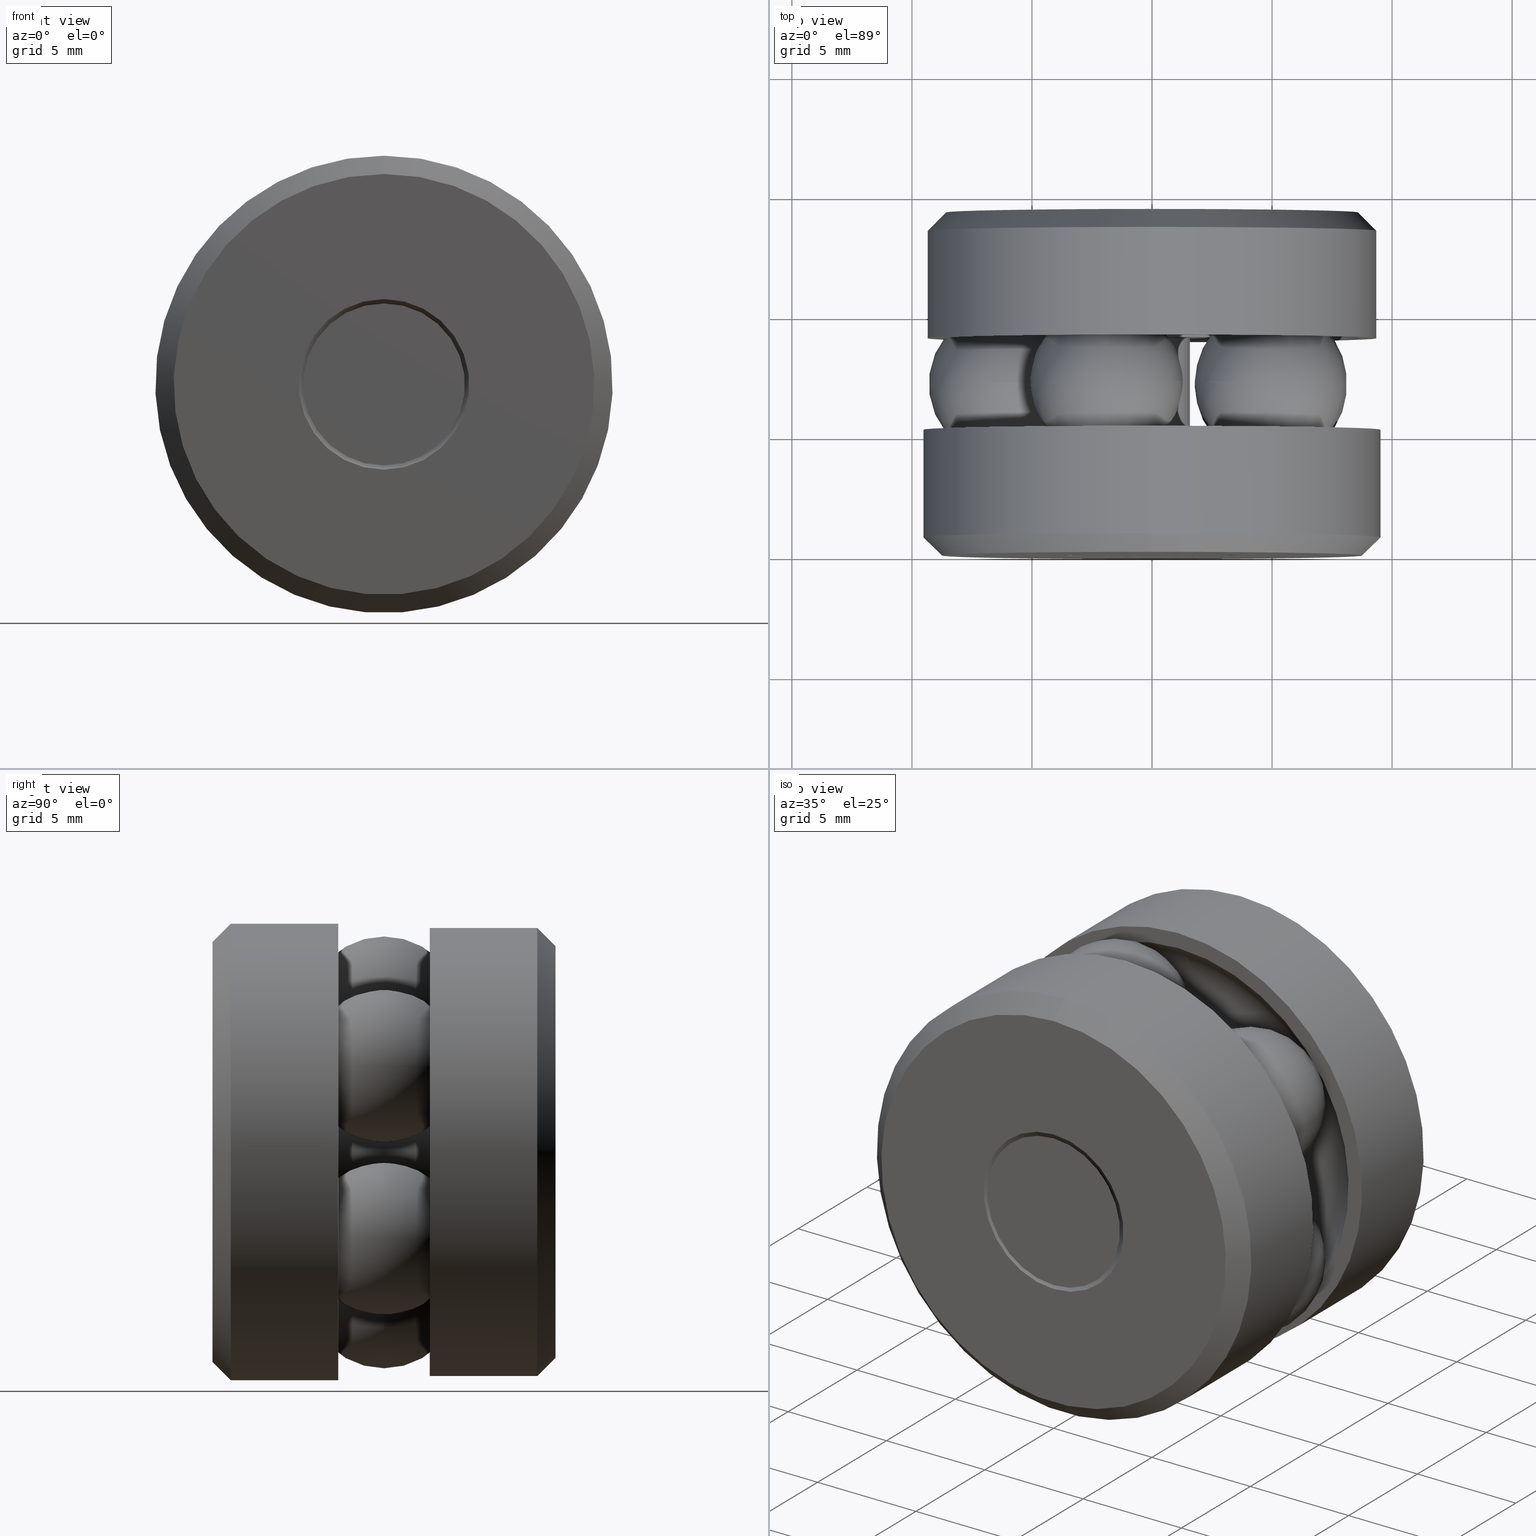
[diagram: canonical four-view strip — front | top / right | iso, engineering-drawing reading convention]
A machine part, canonical four-view strip (front | top / right | iso — engineering-drawing reading convention). The complete STEP part file that produces these views, byte-faithful:
ISO-10303-21;
HEADER;
FILE_DESCRIPTION (( 'STEP AP203' ),
    '1' );
FILE_NAME ('T-114RG_T-114RG-0012.step',
    '2016-02-04T15:34:09',
    ( '' ),
    ( '' ),
    'SwSTEP 2.0',
    'SolidWorks 2016',
    '' );
FILE_SCHEMA (( 'CONFIG_CONTROL_DESIGN' ));
ENDSEC;

DATA;
#1 = MANIFOLD_SOLID_BREP ( 'Revolve2[2]', #357 ) ;
#2 = ORIENTED_EDGE ( 'NONE', *, *, #124, .F. ) ;
#3 = DIRECTION ( 'NONE',  ( 0.9510565162951500900, 0.0000000000000000000, -0.3090169943749582800 ) ) ;
#4 = APPROVAL_DATE_TIME ( #121, #238 ) ;
#5 = FACE_BOUND ( 'NONE', #170, .T. ) ;
#6 =( LENGTH_UNIT ( ) NAMED_UNIT ( * ) SI_UNIT ( $, .METRE. ) );
#7 = EDGE_LOOP ( 'NONE', ( #351 ) ) ;
#8 = DIRECTION ( 'NONE',  ( 0.0000000000000000000, -1.000000000000000000, 0.0000000000000000000 ) ) ;
#9 = AXIS2_PLACEMENT_3D ( 'NONE', #356, #123, #410 ) ;
#10 = DIRECTION ( 'NONE',  ( 0.0000000000000000000, 0.0000000000000000000, 1.000000000000000000 ) ) ;
#11 = VERTEX_POINT ( 'NONE', #364 ) ;
#12 = APPLICATION_CONTEXT ( 'configuration controlled 3d designs of mechanical parts and assemblies' ) ;
#13 = SPHERICAL_SURFACE ( 'NONE', #169, 0.1250000000000000300 ) ;
#14 = AXIS2_PLACEMENT_3D ( 'NONE', #277, #71, #158 ) ;
#15 = DIRECTION ( 'NONE',  ( -0.0000000000000000000, 1.000000000000000000, -0.0000000000000000000 ) ) ;
#16 = EDGE_LOOP ( 'NONE', ( #156 ) ) ;
#17 = CARTESIAN_POINT ( 'NONE',  ( 0.0000000000000000000, 0.4901164321881347200, 0.06750000000000008800 ) ) ;
#18 = DIRECTION ( 'NONE',  ( 0.0000000000000000000, -1.000000000000000000, 0.0000000000000000000 ) ) ;
#19 = APPROVAL_PERSON_ORGANIZATION ( #132, #238, #104 ) ;
#20 = CIRCLE ( 'NONE', #427, 0.06750000000000003200 ) ;
#21 = EDGE_LOOP ( 'NONE', ( #90 ) ) ;
#22 = APPROVAL_ROLE ( '' ) ;
#23 = EDGE_CURVE ( 'NONE', #153, #153, #143, .T. ) ;
#24 = DIRECTION ( 'NONE',  ( 0.0000000000000000000, 0.0000000000000000000, 1.000000000000000000 ) ) ;
#25 = VERTEX_POINT ( 'NONE', #130 ) ;
#26 = DATE_AND_TIME ( #142, #251 ) ;
#27 = FACE_OUTER_BOUND ( 'NONE', #275, .T. ) ;
#28 = CARTESIAN_POINT ( 'NONE',  ( 0.0000000000000000000, 0.5624999999999998900, 0.0000000000000000000 ) ) ;
#29 = ORIENTED_EDGE ( 'NONE', *, *, #323, .F. ) ;
#30 = ORIENTED_EDGE ( 'NONE', *, *, #294, .F. ) ;
#31 = CARTESIAN_POINT ( 'NONE',  ( 0.0000000000000000000, 0.2062500000000001600, 0.1409999999999998500 ) ) ;
#32 = ADVANCED_FACE ( 'NONE', ( #253, #27 ), #129, .F. ) ;
#33 = DIRECTION ( 'NONE',  ( -0.0000000000000000000, 1.000000000000000000, -0.0000000000000000000 ) ) ;
#34 = COORDINATED_UNIVERSAL_TIME_OFFSET ( 5, 0, .BEHIND. ) ;
#35 = CONICAL_SURFACE ( 'NONE', #91, 0.06750000000000008800, 0.7853981633974438400 ) ;
#36 = ADVANCED_FACE ( 'NONE', ( ), #13, .T. ) ;
#37 = DIRECTION ( 'NONE',  ( -0.0000000000000000000, 1.000000000000000000, -0.0000000000000000000 ) ) ;
#38 = ORIENTED_EDGE ( 'NONE', *, *, #109, .F. ) ;
#39 = DIMENSIONAL_EXPONENTS ( 1.000000000000000000, 0.0000000000000000000, 0.0000000000000000000, 0.0000000000000000000, 0.0000000000000000000, 0.0000000000000000000, 0.0000000000000000000 ) ;
#40 = CARTESIAN_POINT ( 'NONE',  ( -0.1328124999999993300, 0.0000000000000000000, 0.0000000000000000000 ) ) ;
#41 = CARTESIAN_POINT ( 'NONE',  ( 0.0000000000000000000, 0.5324999999999996400, 0.0000000000000000000 ) ) ;
#42 = VERTEX_POINT ( 'NONE', #445 ) ;
#43 = PERSON_AND_ORGANIZATION ( #285, #62 ) ;
#44 = CC_DESIGN_PERSON_AND_ORGANIZATION_ASSIGNMENT ( #493, #470, ( #115 ) ) ;
#45 = ORIENTED_EDGE ( 'NONE', *, *, #124, .T. ) ;
#46 = DIRECTION ( 'NONE',  ( 0.0000000000000000000, 0.0000000000000000000, -1.000000000000000000 ) ) ;
#47 = ORIENTED_EDGE ( 'NONE', *, *, #204, .F. ) ;
#48 = DIRECTION ( 'NONE',  ( 0.5877852522924802400, -0.0000000000000000000, 0.8090169943749422300 ) ) ;
#49 = AXIS2_PLACEMENT_3D ( 'NONE', #176, #316, #214 ) ;
#50 = LOCAL_TIME ( 10, 34, 9.000000000000000000, #161 ) ;
#51 = CYLINDRICAL_SURFACE ( 'NONE', #120, 0.3750000000000000600 ) ;
#52 = DIRECTION ( 'NONE',  ( 0.0000000000000000000, 0.0000000000000000000, 1.000000000000000000 ) ) ;
#53 = CARTESIAN_POINT ( 'NONE',  ( 0.0000000000000000000, 0.03000000000000031100, 0.0000000000000000000 ) ) ;
#54 = ORIENTED_EDGE ( 'NONE', *, *, #177, .T. ) ;
#55 = AXIS2_PLACEMENT_3D ( 'NONE', #492, #212, #271 ) ;
#56 = CYLINDRICAL_SURFACE ( 'NONE', #337, 0.3679999999999999900 ) ;
#57 = EDGE_CURVE ( 'NONE', #42, #42, #464, .T. ) ;
#58 = DIRECTION ( 'NONE',  ( 0.0000000000000000000, 0.0000000000000000000, 1.000000000000000000 ) ) ;
#59 = EDGE_LOOP ( 'NONE', ( #487 ) ) ;
#60 = CARTESIAN_POINT ( 'NONE',  ( -0.1398835678118648100, 0.5625000000000000000, 0.0000000000000000000 ) ) ;
#61 = CARTESIAN_POINT ( 'NONE',  ( 0.1949730956443631000, 0.2812500000000000600, 0.1416562458024849000 ) ) ;
#62 = ORGANIZATION ( 'UNSPECIFIED', 'UNSPECIFIED', '' ) ;
#63 = CARTESIAN_POINT ( 'NONE',  ( 0.0000000000000000000, 0.2062500000000001600, 0.06750000000000000400 ) ) ;
#64 = FACE_OUTER_BOUND ( 'NONE', #280, .T. ) ;
#65 = AXIS2_PLACEMENT_3D ( 'NONE', #453, #37, #146 ) ;
#66 = DIRECTION ( 'NONE',  ( 0.0000000000000000000, 0.0000000000000000000, 1.000000000000000000 ) ) ;
#67 = EDGE_LOOP ( 'NONE', ( #150 ) ) ;
#68 = CARTESIAN_POINT ( 'NONE',  ( 0.0000000000000000000, 0.5625000000000001100, 0.1328124999999994200 ) ) ;
#69 = CARTESIAN_POINT ( 'NONE',  ( 0.0000000000000000000, 0.5625000000000001100, 0.0000000000000000000 ) ) ;
#70 = FACE_BOUND ( 'NONE', #290, .T. ) ;
#71 = DIRECTION ( 'NONE',  ( -0.0000000000000000000, 1.000000000000000000, -0.0000000000000000000 ) ) ;
#72 = PRODUCT_DEFINITION ( 'UNKNOWN', '', #208, #313 ) ;
#73 = CLOSED_SHELL ( 'NONE', ( #36 ) ) ;
#74 = ORIENTED_EDGE ( 'NONE', *, *, #323, .T. ) ;
#75 = DIRECTION ( 'NONE',  ( 0.0000000000000000000, 0.0000000000000000000, 1.000000000000000000 ) ) ;
#76 = AXIS2_PLACEMENT_3D ( 'NONE', #503, #213, #192 ) ;
#77 = PRODUCT_DEFINITION_SHAPE ( 'NONE', 'NONE',  #72 ) ;
#78 = ADVANCED_FACE ( 'NONE', ( ), #239, .T. ) ;
#79 = CARTESIAN_POINT ( 'NONE',  ( 0.0000000000000000000, 0.5625000000000001100, 0.0000000000000000000 ) ) ;
#80 = SPHERICAL_SURFACE ( 'NONE', #173, 0.1250000000000000300 ) ;
#81 = ADVANCED_FACE ( 'NONE', ( ), #447, .T. ) ;
#82 = ORIENTED_EDGE ( 'NONE', *, *, #403, .T. ) ;
#83 = CARTESIAN_POINT ( 'NONE',  ( -0.1398835678118647000, -2.068422666186269000E-017, 0.0000000000000000000 ) ) ;
#84 = AXIS2_PLACEMENT_3D ( 'NONE', #40, #388, #505 ) ;
#85 = FACE_BOUND ( 'NONE', #247, .T. ) ;
#86 = CLOSED_SHELL ( 'NONE', ( #81 ) ) ;
#87 = EDGE_CURVE ( 'NONE', #250, #250, #354, .T. ) ;
#88 =( NAMED_UNIT ( * ) SI_UNIT ( $, .STERADIAN. ) SOLID_ANGLE_UNIT ( ) );
#89 = FACE_OUTER_BOUND ( 'NONE', #21, .T. ) ;
#90 = ORIENTED_EDGE ( 'NONE', *, *, #57, .F. ) ;
#91 = AXIS2_PLACEMENT_3D ( 'NONE', #372, #484, #531 ) ;
#92 = CARTESIAN_POINT ( 'NONE',  ( 0.0000000000000000000, -4.033012303457140400E-017, 0.3450000000000000300 ) ) ;
#93 = FACE_OUTER_BOUND ( 'NONE', #67, .T. ) ;
#94 = CARTESIAN_POINT ( 'NONE',  ( 0.0000000000000000000, 0.2062500000000000400, 0.3750000000000000600 ) ) ;
#95 = EDGE_LOOP ( 'NONE', ( #315 ) ) ;
#96 = APPROVAL ( #295, 'UNSPECIFIED' ) ;
#97 = VERTEX_POINT ( 'NONE', #261 ) ;
#98 = CIRCLE ( 'NONE', #14, 0.1409999999999998500 ) ;
#99 = MANIFOLD_SOLID_BREP ( 'Revolve2[3]', #517 ) ;
#100 = SECURITY_CLASSIFICATION_LEVEL ( 'unclassified' ) ;
#101 = CARTESIAN_POINT ( 'NONE',  ( 0.0000000000000000000, 0.0000000000000000000, 0.0000000000000000000 ) ) ;
#102 = DATE_TIME_ROLE ( 'classification_date' ) ;
#103 = COORDINATED_UNIVERSAL_TIME_OFFSET ( 5, 0, .BEHIND. ) ;
#104 = APPROVAL_ROLE ( '' ) ;
#105 = CYLINDRICAL_SURFACE ( 'NONE', #507, 0.06750000000000000400 ) ;
#106 = AXIS2_PLACEMENT_3D ( 'NONE', #137, #8, #392 ) ;
#107 = EDGE_LOOP ( 'NONE', ( #165 ) ) ;
#108 = DIRECTION ( 'NONE',  ( 0.0000000000000000000, 0.0000000000000000000, 1.000000000000000000 ) ) ;
#109 = EDGE_CURVE ( 'NONE', #140, #140, #342, .T. ) ;
#110 = DIRECTION ( 'NONE',  ( 0.0000000000000000000, -1.000000000000000000, 0.0000000000000000000 ) ) ;
#111 = VERTEX_POINT ( 'NONE', #187 ) ;
#112 = FACE_OUTER_BOUND ( 'NONE', #450, .T. ) ;
#113 = CARTESIAN_POINT ( 'NONE',  ( -0.1409999999999999000, 0.3562499999999999000, 0.0000000000000000000 ) ) ;
#114 = ADVANCED_FACE ( 'NONE', ( #226, #436 ), #526, .T. ) ;
#115 = PRODUCT ( 'T-114RG_T-114RG-0012', 'T-114RG_T-114RG-0012', '', ( #407 ) ) ;
#116 = EDGE_LOOP ( 'NONE', ( #537 ) ) ;
#117 = DIRECTION ( 'NONE',  ( -0.0000000000000000000, 1.000000000000000000, -0.0000000000000000000 ) ) ;
#118 = ADVANCED_FACE ( 'NONE', ( #542, #112 ), #422, .T. ) ;
#119 = DIRECTION ( 'NONE',  ( 0.0000000000000000000, -0.0000000000000000000, -1.000000000000000000 ) ) ;
#120 = AXIS2_PLACEMENT_3D ( 'NONE', #455, #310, #199 ) ;
#121 = DATE_AND_TIME ( #231, #347 ) ;
#122 = CIRCLE ( 'NONE', #376, 0.06750000000000008800 ) ;
#123 = DIRECTION ( 'NONE',  ( 0.0000000000000000000, 0.0000000000000000000, 1.000000000000000000 ) ) ;
#124 = EDGE_CURVE ( 'NONE', #25, #25, #329, .T. ) ;
#125 = CLOSED_SHELL ( 'NONE', ( #78 ) ) ;
#126 = CC_DESIGN_APPROVAL ( #96, ( #72 ) ) ;
#127 = VERTEX_POINT ( 'NONE', #301 ) ;
#128 = DIRECTION ( 'NONE',  ( -0.0000000000000000000, 1.000000000000000000, -0.0000000000000000000 ) ) ;
#129 = CYLINDRICAL_SURFACE ( 'NONE', #223, 0.06750000000000006000 ) ;
#130 = CARTESIAN_POINT ( 'NONE',  ( 0.0000000000000000000, 0.07238356781186547400, 0.06750000000000000400 ) ) ;
#131 = EDGE_LOOP ( 'NONE', ( #417 ) ) ;
#132 = PERSON_AND_ORGANIZATION ( #285, #62 ) ;
#133 = DIRECTION ( 'NONE',  ( 0.0000000000000000000, 0.0000000000000000000, -1.000000000000000000 ) ) ;
#134 = FACE_BOUND ( 'NONE', #116, .T. ) ;
#135 = DIRECTION ( 'NONE',  ( 1.000000000000000000, 0.0000000000000000000, 0.0000000000000000000 ) ) ;
#136 = EDGE_LOOP ( 'NONE', ( #227 ) ) ;
#137 = CARTESIAN_POINT ( 'NONE',  ( 0.0000000000000000000, 0.07031250000000006900, 0.0000000000000000000 ) ) ;
#138 = AXIS2_PLACEMENT_3D ( 'NONE', #318, #425, #467 ) ;
#139 = DIRECTION ( 'NONE',  ( 0.0000000000000000000, 0.0000000000000000000, 1.000000000000000000 ) ) ;
#140 = VERTEX_POINT ( 'NONE', #224 ) ;
#141 = AXIS2_PLACEMENT_3D ( 'NONE', #541, #164, #335 ) ;
#142 = CALENDAR_DATE ( 2016, 4, 2 ) ;
#143 = CIRCLE ( 'NONE', #141, 0.3750000000000000600 ) ;
#144 = DIRECTION ( 'NONE',  ( -0.0000000000000000000, 1.000000000000000000, -0.0000000000000000000 ) ) ;
#145 = EDGE_LOOP ( 'NONE', ( #54 ) ) ;
#146 = DIRECTION ( 'NONE',  ( 0.0000000000000000000, 0.0000000000000000000, 1.000000000000000000 ) ) ;
#147 = PERSON_AND_ORGANIZATION ( #285, #62 ) ;
#148 = CIRCLE ( 'NONE', #65, 0.06250000000000008300 ) ;
#149 = DIRECTION ( 'NONE',  ( 0.0000000000000000000, 0.0000000000000000000, 1.000000000000000000 ) ) ;
#150 = ORIENTED_EDGE ( 'NONE', *, *, #511, .F. ) ;
#151 = EDGE_CURVE ( 'NONE', #462, #462, #211, .T. ) ;
#152 = CARTESIAN_POINT ( 'NONE',  ( -0.2409999999999999600, 0.2812500000000000600, 0.0000000000000000000 ) ) ;
#153 = VERTEX_POINT ( 'NONE', #94 ) ;
#154 = CC_DESIGN_PERSON_AND_ORGANIZATION_ASSIGNMENT ( #147, #346, ( #72 ) ) ;
#155 = CARTESIAN_POINT ( 'NONE',  ( 0.0000000000000000000, 0.5624999999999998900, 0.0000000000000000000 ) ) ;
#156 = ORIENTED_EDGE ( 'NONE', *, *, #87, .T. ) ;
#157 = DIRECTION ( 'NONE',  ( -0.0000000000000000000, 1.000000000000000000, -0.0000000000000000000 ) ) ;
#158 = DIRECTION ( 'NONE',  ( 0.0000000000000000000, 0.0000000000000000000, 1.000000000000000000 ) ) ;
#159 = ADVANCED_BREP_SHAPE_REPRESENTATION ( 'T-114RG_T-114RG-0012', ( #489, #1, #99, #195, #358, #452, #298, #397, #9 ), #443 ) ;
#160 = ADVANCED_FACE ( 'NONE', ( #366, #312 ), #387, .T. ) ;
#161 = COORDINATED_UNIVERSAL_TIME_OFFSET ( 5, 0, .BEHIND. ) ;
#162 = FACE_OUTER_BOUND ( 'NONE', #186, .T. ) ;
#163 = ADVANCED_FACE ( 'NONE', ( #196, #408 ), #287, .T. ) ;
#164 = DIRECTION ( 'NONE',  ( -0.0000000000000000000, 1.000000000000000000, -0.0000000000000000000 ) ) ;
#165 = ORIENTED_EDGE ( 'NONE', *, *, #539, .T. ) ;
#166 = AXIS2_PLACEMENT_3D ( 'NONE', #460, #128, #139 ) ;
#167 = CIRCLE ( 'NONE', #306, 0.3679999999999999900 ) ;
#168 = CARTESIAN_POINT ( 'NONE',  ( -0.1409999999999998500, 0.2062500000000001600, 0.0000000000000000000 ) ) ;
#169 = AXIS2_PLACEMENT_3D ( 'NONE', #175, #300, #429 ) ;
#170 = EDGE_LOOP ( 'NONE', ( #45 ) ) ;
#171 = DIRECTION ( 'NONE',  ( 0.0000000000000000000, -0.0000000000000000000, -1.000000000000000000 ) ) ;
#172 = FACE_OUTER_BOUND ( 'NONE', #95, .T. ) ;
#173 = AXIS2_PLACEMENT_3D ( 'NONE', #411, #48, #289 ) ;
#174 = EDGE_LOOP ( 'NONE', ( #241 ) ) ;
#175 = CARTESIAN_POINT ( 'NONE',  ( -0.07447309564436169200, 0.2812500000000000600, 0.2292046204271322400 ) ) ;
#176 = CARTESIAN_POINT ( 'NONE',  ( -0.3679999999999999900, 0.3562499999999999000, 0.0000000000000000000 ) ) ;
#177 = EDGE_CURVE ( 'NONE', #353, #353, #98, .T. ) ;
#178 = CARTESIAN_POINT ( 'NONE',  ( 0.0000000000000000000, -1.038330289153975800E-018, 0.0000000000000000000 ) ) ;
#179 = TOROIDAL_SURFACE ( 'NONE', #278, 0.2409999999999999600, 0.1250000000000000300 ) ;
#180 = DIRECTION ( 'NONE',  ( -0.0000000000000000000, 1.000000000000000000, -0.0000000000000000000 ) ) ;
#181 = ORIENTED_EDGE ( 'NONE', *, *, #87, .F. ) ;
#182 = CC_DESIGN_DATE_AND_TIME_ASSIGNMENT ( #245, #488, ( #72 ) ) ;
#183 = CARTESIAN_POINT ( 'NONE',  ( -0.3750000000000000600, 0.2062500000000001000, 0.0000000000000000000 ) ) ;
#184 = FACE_OUTER_BOUND ( 'NONE', #497, .T. ) ;
#185 = DIRECTION ( 'NONE',  ( 0.0000000000000000000, 0.0000000000000000000, 1.000000000000000000 ) ) ;
#186 = EDGE_LOOP ( 'NONE', ( #221 ) ) ;
#187 = CARTESIAN_POINT ( 'NONE',  ( 0.0000000000000000000, 0.5625000000000001100, 0.1398835678118648100 ) ) ;
#188 = CIRCLE ( 'NONE', #166, 0.3410000000000000800 ) ;
#189 = AXIS2_PLACEMENT_3D ( 'NONE', #60, #303, #520 ) ;
#190 = DIRECTION ( 'NONE',  ( -0.0000000000000000000, 1.000000000000000000, -0.0000000000000000000 ) ) ;
#191 = ORIENTED_EDGE ( 'NONE', *, *, #151, .T. ) ;
#192 = DIRECTION ( 'NONE',  ( 0.0000000000000000000, 0.0000000000000000000, 1.000000000000000000 ) ) ;
#193 = AXIS2_PLACEMENT_3D ( 'NONE', #53, #498, #311 ) ;
#194 = CARTESIAN_POINT ( 'NONE',  ( 0.0000000000000000000, 0.07031250000000006900, 0.0000000000000000000 ) ) ;
#195 = MANIFOLD_SOLID_BREP ( 'Revolve3', #125 ) ;
#196 = FACE_BOUND ( 'NONE', #7, .T. ) ;
#197 = ADVANCED_FACE ( 'NONE', ( #516, #184 ), #299, .F. ) ;
#198 = EDGE_LOOP ( 'NONE', ( #47 ) ) ;
#199 = DIRECTION ( 'NONE',  ( 0.0000000000000000000, 0.0000000000000000000, 1.000000000000000000 ) ) ;
#200 = ADVANCED_FACE ( 'NONE', ( #398, #89 ), #386, .T. ) ;
#201 = AXIS2_PLACEMENT_3D ( 'NONE', #339, #15, #444 ) ;
#202 = FACE_OUTER_BOUND ( 'NONE', #437, .T. ) ;
#203 = DIRECTION ( 'NONE',  ( -0.0000000000000000000, 1.000000000000000000, -0.0000000000000000000 ) ) ;
#204 = EDGE_CURVE ( 'NONE', #237, #237, #494, .T. ) ;
#205 = PLANE ( 'NONE',  #189 ) ;
#206 = ORIENTED_EDGE ( 'NONE', *, *, #151, .F. ) ;
#207 = DIRECTION ( 'NONE',  ( 0.0000000000000000000, 0.0000000000000000000, 1.000000000000000000 ) ) ;
#208 = PRODUCT_DEFINITION_FORMATION_WITH_SPECIFIED_SOURCE ( 'ANY', '', #115, .NOT_KNOWN. ) ;
#209 = APPLICATION_PROTOCOL_DEFINITION ( 'international standard', 'config_control_design', 1994, #12 ) ;
#210 = VERTEX_POINT ( 'NONE', #218 ) ;
#211 = CIRCLE ( 'NONE', #396, 0.06750000000000000400 ) ;
#212 = DIRECTION ( 'NONE',  ( -0.0000000000000000000, 1.000000000000000000, -0.0000000000000000000 ) ) ;
#213 = DIRECTION ( 'NONE',  ( -0.0000000000000000000, 1.000000000000000000, -0.0000000000000000000 ) ) ;
#214 = DIRECTION ( 'NONE',  ( 0.0000000000000000000, -0.0000000000000000000, -1.000000000000000000 ) ) ;
#215 = PERSON_AND_ORGANIZATION ( #285, #62 ) ;
#216 = DIRECTION ( 'NONE',  ( -0.0000000000000000000, 1.000000000000000000, -0.0000000000000000000 ) ) ;
#217 = CIRCLE ( 'NONE', #483, 0.1398835678118648100 ) ;
#218 = CARTESIAN_POINT ( 'NONE',  ( 0.0000000000000000000, 0.3562500000000000100, 0.3679999999999999900 ) ) ;
#219 = CARTESIAN_POINT ( 'NONE',  ( 0.0000000000000000000, -1.038330289153975800E-018, 0.0000000000000000000 ) ) ;
#220 = AXIS2_PLACEMENT_3D ( 'NONE', #269, #344, #538 ) ;
#221 = ORIENTED_EDGE ( 'NONE', *, *, #23, .T. ) ;
#222 = CARTESIAN_POINT ( 'NONE',  ( 0.0000000000000000000, 0.0000000000000000000, 0.0000000000000000000 ) ) ;
#223 = AXIS2_PLACEMENT_3D ( 'NONE', #379, #390, #440 ) ;
#224 = CARTESIAN_POINT ( 'NONE',  ( 0.0000000000000000000, -1.038330289153975800E-018, 0.1398835678118647000 ) ) ;
#225 = VERTEX_POINT ( 'NONE', #17 ) ;
#226 = FACE_OUTER_BOUND ( 'NONE', #521, .T. ) ;
#227 = ORIENTED_EDGE ( 'NONE', *, *, #539, .F. ) ;
#228 = DIRECTION ( 'NONE',  ( -0.0000000000000000000, 1.000000000000000000, 0.0000000000000000000 ) ) ;
#229 = EDGE_LOOP ( 'NONE', ( #504 ) ) ;
#230 = AXIS2_PLACEMENT_3D ( 'NONE', #183, #506, #185 ) ;
#231 = CALENDAR_DATE ( 2016, 4, 2 ) ;
#232 = FACE_OUTER_BOUND ( 'NONE', #302, .T. ) ;
#233 = PLANE ( 'NONE',  #349 ) ;
#234 = ORIENTED_EDGE ( 'NONE', *, *, #109, .T. ) ;
#235 = EDGE_CURVE ( 'NONE', #127, #127, #502, .T. ) ;
#236 = CARTESIAN_POINT ( 'NONE',  ( 0.0000000000000000000, -4.033012303457140400E-017, 0.0000000000000000000 ) ) ;
#237 = VERTEX_POINT ( 'NONE', #370 ) ;
#238 = APPROVAL ( #529, 'UNSPECIFIED' ) ;
#239 = SPHERICAL_SURFACE ( 'NONE', #281, 0.1250000000000000300 ) ;
#240 =( NAMED_UNIT ( * ) PLANE_ANGLE_UNIT ( ) SI_UNIT ( $, .RADIAN. ) );
#241 = ORIENTED_EDGE ( 'NONE', *, *, #204, .T. ) ;
#242 = EDGE_LOOP ( 'NONE', ( #181 ) ) ;
#243 = ADVANCED_FACE ( 'NONE', ( #172, #64 ), #51, .T. ) ;
#244 = ADVANCED_FACE ( 'NONE', ( #286, #481 ), #35, .F. ) ;
#245 = DATE_AND_TIME ( #360, #468 ) ;
#246 = FACE_OUTER_BOUND ( 'NONE', #145, .T. ) ;
#247 = EDGE_LOOP ( 'NONE', ( #324 ) ) ;
#248 = DIRECTION ( 'NONE',  ( 0.0000000000000000000, -1.000000000000000000, 0.0000000000000000000 ) ) ;
#249 = AXIS2_PLACEMENT_3D ( 'NONE', #527, #157, #449 ) ;
#250 = VERTEX_POINT ( 'NONE', #92 ) ;
#251 = LOCAL_TIME ( 10, 34, 9.000000000000000000, #365 ) ;
#252 = DIRECTION ( 'NONE',  ( 0.0000000000000000000, 0.0000000000000000000, -1.000000000000000000 ) ) ;
#253 = FACE_OUTER_BOUND ( 'NONE', #424, .T. ) ;
#254 = AXIS2_PLACEMENT_3D ( 'NONE', #236, #190, #10 ) ;
#255 = CARTESIAN_POINT ( 'NONE',  ( -0.07447309564436492600, 0.2812500000000000600, -0.2292046204271311600 ) ) ;
#256 = EDGE_LOOP ( 'NONE', ( #389 ) ) ;
#257 = UNCERTAINTY_MEASURE_WITH_UNIT (LENGTH_MEASURE( 1.000000000000000100E-005 ), #523, 'distance_accuracy_value', 'NONE');
#258 = DIRECTION ( 'NONE',  ( -0.8090169943749507800, 0.0000000000000000000, -0.5877852522924685900 ) ) ;
#259 = APPROVAL_DATE_TIME ( #373, #96 ) ;
#260 = FACE_BOUND ( 'NONE', #477, .T. ) ;
#261 = CARTESIAN_POINT ( 'NONE',  ( 0.0000000000000000000, 0.5324999999999996400, 0.3679999999999999900 ) ) ;
#262 = AXIS2_PLACEMENT_3D ( 'NONE', #101, #279, #359 ) ;
#263 = EDGE_LOOP ( 'NONE', ( #29 ) ) ;
#264 = DIRECTION ( 'NONE',  ( 0.0000000000000000000, 0.0000000000000000000, 1.000000000000000000 ) ) ;
#265 = PLANE ( 'NONE',  #84 ) ;
#266 = EDGE_CURVE ( 'NONE', #11, #11, #148, .T. ) ;
#267 = CIRCLE ( 'NONE', #394, 0.3380000000000001300 ) ;
#268 = CC_DESIGN_APPROVAL ( #238, ( #208 ) ) ;
#269 = CARTESIAN_POINT ( 'NONE',  ( 0.0000000000000000000, 0.3562500000000000100, 0.0000000000000000000 ) ) ;
#270 = ORIENTED_EDGE ( 'NONE', *, *, #432, .T. ) ;
#271 = DIRECTION ( 'NONE',  ( 0.0000000000000000000, 0.0000000000000000000, 1.000000000000000000 ) ) ;
#272 = APPROVAL_ROLE ( '' ) ;
#273 = APPROVAL_PERSON_ORGANIZATION ( #385, #96, #272 ) ;
#274 = FACE_OUTER_BOUND ( 'NONE', #263, .T. ) ;
#275 = EDGE_LOOP ( 'NONE', ( #466 ) ) ;
#276 = CARTESIAN_POINT ( 'NONE',  ( 0.0000000000000000000, 0.07238356781186547400, 0.0000000000000000000 ) ) ;
#277 = CARTESIAN_POINT ( 'NONE',  ( 0.0000000000000000000, 0.2062500000000001600, 0.0000000000000000000 ) ) ;
#278 = AXIS2_PLACEMENT_3D ( 'NONE', #473, #420, #426 ) ;
#279 = DIRECTION ( 'NONE',  ( -0.0000000000000000000, 1.000000000000000000, -0.0000000000000000000 ) ) ;
#280 = EDGE_LOOP ( 'NONE', ( #336 ) ) ;
#281 = AXIS2_PLACEMENT_3D ( 'NONE', #152, #46, #135 ) ;
#282 = CARTESIAN_POINT ( 'NONE',  ( 0.0000000000000000000, 0.3562499999999999000, 0.1409999999999998800 ) ) ;
#283 = ADVANCED_FACE ( 'NONE', ( ), #80, .T. ) ;
#284 = CARTESIAN_POINT ( 'NONE',  ( 0.0000000000000000000, 0.0000000000000000000, 0.1328124999999993300 ) ) ;
#285 = PERSON ( 'UNSPECIFIED', 'UNSPECIFIED', 'UNSPECIFIED', ('UNSPECIFIED'), ('UNSPECIFIED'), ('UNSPECIFIED') ) ;
#286 = FACE_OUTER_BOUND ( 'NONE', #412, .T. ) ;
#287 = PLANE ( 'NONE',  #49 ) ;
#288 = ADVANCED_FACE ( 'NONE', ( #162, #374 ), #367, .T. ) ;
#289 = DIRECTION ( 'NONE',  ( -0.8090169943749422300, 0.0000000000000000000, 0.5877852522924802400 ) ) ;
#290 = EDGE_LOOP ( 'NONE', ( #82 ) ) ;
#291 = CARTESIAN_POINT ( 'NONE',  ( 0.0000000000000000000, 0.0000000000000000000, 0.0000000000000000000 ) ) ;
#292 = DIRECTION ( 'NONE',  ( 0.0000000000000000000, 0.0000000000000000000, 1.000000000000000000 ) ) ;
#293 = FACE_OUTER_BOUND ( 'NONE', #174, .T. ) ;
#294 = EDGE_CURVE ( 'NONE', #446, #446, #469, .T. ) ;
#295 = APPROVAL_STATUS ( 'not_yet_approved' ) ;
#296 = ORIENTED_EDGE ( 'NONE', *, *, #485, .F. ) ;
#297 = CC_DESIGN_PERSON_AND_ORGANIZATION_ASSIGNMENT ( #438, #536, ( #208 ) ) ;
#298 = MANIFOLD_SOLID_BREP ( 'BALLS[3]', #472 ) ;
#299 = TOROIDAL_SURFACE ( 'NONE', #138, 0.2409999999999999600, 0.1250000000000000300 ) ;
#300 = DIRECTION ( 'NONE',  ( -0.9510565162951544200, 0.0000000000000000000, -0.3090169943749446800 ) ) ;
#301 = CARTESIAN_POINT ( 'NONE',  ( 0.0000000000000000000, 0.07031250000000006900, 0.06250000000000001400 ) ) ;
#302 = EDGE_LOOP ( 'NONE', ( #191 ) ) ;
#303 = DIRECTION ( 'NONE',  ( -0.0000000000000000000, 1.000000000000000000, 0.0000000000000000000 ) ) ;
#304 = CARTESIAN_POINT ( 'NONE',  ( 0.0000000000000000000, 0.2062500000000001600, 0.0000000000000000000 ) ) ;
#305 = FACE_OUTER_BOUND ( 'NONE', #107, .T. ) ;
#306 = AXIS2_PLACEMENT_3D ( 'NONE', #41, #496, #24 ) ;
#307 = ORIENTED_EDGE ( 'NONE', *, *, #511, .T. ) ;
#308 = DIRECTION ( 'NONE',  ( 0.0000000000000000000, -1.000000000000000000, 0.0000000000000000000 ) ) ;
#309 = AXIS2_PLACEMENT_3D ( 'NONE', #255, #3, #512 ) ;
#310 = DIRECTION ( 'NONE',  ( -0.0000000000000000000, 1.000000000000000000, -0.0000000000000000000 ) ) ;
#311 = DIRECTION ( 'NONE',  ( 0.0000000000000000000, 0.0000000000000000000, 1.000000000000000000 ) ) ;
#312 = FACE_OUTER_BOUND ( 'NONE', #242, .T. ) ;
#313 = DESIGN_CONTEXT ( 'detailed design', #12, 'design' ) ;
#314 = APPLICATION_PROTOCOL_DEFINITION ( 'international standard', 'config_control_design', 1994, #423 ) ;
#315 = ORIENTED_EDGE ( 'NONE', *, *, #57, .T. ) ;
#316 = DIRECTION ( 'NONE',  ( 0.0000000000000000000, -1.000000000000000000, 0.0000000000000000000 ) ) ;
#317 = AXIS2_PLACEMENT_3D ( 'NONE', #419, #478, #322 ) ;
#318 = CARTESIAN_POINT ( 'NONE',  ( 0.0000000000000000000, 0.2812500000000000000, 0.0000000000000000000 ) ) ;
#319 = DATE_AND_TIME ( #428, #533 ) ;
#320 = AXIS2_PLACEMENT_3D ( 'NONE', #194, #33, #510 ) ;
#321 = CIRCLE ( 'NONE', #220, 0.3679999999999999900 ) ;
#322 = DIRECTION ( 'NONE',  ( 0.0000000000000000000, 0.0000000000000000000, 1.000000000000000000 ) ) ;
#323 = EDGE_CURVE ( 'NONE', #340, #340, #361, .T. ) ;
#324 = ORIENTED_EDGE ( 'NONE', *, *, #380, .F. ) ;
#325 = DIRECTION ( 'NONE',  ( -0.0000000000000000000, 1.000000000000000000, 0.0000000000000000000 ) ) ;
#326 = CC_DESIGN_PERSON_AND_ORGANIZATION_ASSIGNMENT ( #333, #382, ( #208 ) ) ;
#327 = CARTESIAN_POINT ( 'NONE',  ( 0.0000000000000000000, 0.3562500000000000100, 0.0000000000000000000 ) ) ;
#328 = VERTEX_POINT ( 'NONE', #331 ) ;
#329 = CIRCLE ( 'NONE', #421, 0.06750000000000000400 ) ;
#330 = ADVANCED_FACE ( 'NONE', ( #246, #260 ), #233, .T. ) ;
#331 = CARTESIAN_POINT ( 'NONE',  ( 0.0000000000000000000, 0.3562499999999999000, 0.3410000000000000800 ) ) ;
#332 = ADVANCED_FACE ( 'NONE', ( #134, #348 ), #439, .T. ) ;
#333 = PERSON_AND_ORGANIZATION ( #285, #62 ) ;
#334 = FACE_OUTER_BOUND ( 'NONE', #395, .T. ) ;
#335 = DIRECTION ( 'NONE',  ( 0.0000000000000000000, 0.0000000000000000000, 1.000000000000000000 ) ) ;
#336 = ORIENTED_EDGE ( 'NONE', *, *, #23, .F. ) ;
#337 = AXIS2_PLACEMENT_3D ( 'NONE', #291, #471, #75 ) ;
#338 = DIRECTION ( 'NONE',  ( -0.0000000000000000000, 1.000000000000000000, -0.0000000000000000000 ) ) ;
#339 = CARTESIAN_POINT ( 'NONE',  ( 0.0000000000000000000, 0.5625000000000001100, 0.0000000000000000000 ) ) ;
#340 = VERTEX_POINT ( 'NONE', #284 ) ;
#341 = AXIS2_PLACEMENT_3D ( 'NONE', #219, #508, #108 ) ;
#342 = CIRCLE ( 'NONE', #341, 0.1398835678118647000 ) ;
#343 = ORIENTED_EDGE ( 'NONE', *, *, #380, .T. ) ;
#344 = DIRECTION ( 'NONE',  ( -0.0000000000000000000, 1.000000000000000000, -0.0000000000000000000 ) ) ;
#345 = PLANE ( 'NONE',  #416 ) ;
#346 = PERSON_AND_ORGANIZATION_ROLE ( 'creator' ) ;
#347 = LOCAL_TIME ( 10, 34, 9.000000000000000000, #456 ) ;
#348 = FACE_OUTER_BOUND ( 'NONE', #400, .T. ) ;
#349 = AXIS2_PLACEMENT_3D ( 'NONE', #168, #228, #52 ) ;
#350 = PERSON_AND_ORGANIZATION_ROLE ( 'classification_officer' ) ;
#351 = ORIENTED_EDGE ( 'NONE', *, *, #461, .T. ) ;
#352 = EDGE_CURVE ( 'NONE', #225, #225, #122, .T. ) ;
#353 = VERTEX_POINT ( 'NONE', #31 ) ;
#354 = CIRCLE ( 'NONE', #254, 0.3450000000000000300 ) ;
#355 = SECURITY_CLASSIFICATION ( '', '', #100 ) ;
#356 = CARTESIAN_POINT ( 'NONE',  ( 0.0000000000000000000, 0.0000000000000000000, 0.0000000000000000000 ) ) ;
#357 = CLOSED_SHELL ( 'NONE', ( #244, #32, #532, #197, #163, #495, #114, #454 ) ) ;
#358 = MANIFOLD_SOLID_BREP ( 'BALLS[1]', #73 ) ;
#359 = DIRECTION ( 'NONE',  ( 0.0000000000000000000, 0.0000000000000000000, 1.000000000000000000 ) ) ;
#360 = CALENDAR_DATE ( 2016, 4, 2 ) ;
#361 = CIRCLE ( 'NONE', #262, 0.1328124999999993300 ) ;
#362 = EDGE_LOOP ( 'NONE', ( #377 ) ) ;
#363 = AXIS2_PLACEMENT_3D ( 'NONE', #61, #499, #258 ) ;
#364 = CARTESIAN_POINT ( 'NONE',  ( 0.0000000000000000000, 0.4921875000000000600, 0.06250000000000008300 ) ) ;
#365 = COORDINATED_UNIVERSAL_TIME_OFFSET ( 5, 0, .BEHIND. ) ;
#366 = FACE_BOUND ( 'NONE', #369, .T. ) ;
#367 = PLANE ( 'NONE',  #230 ) ;
#368 = AXIS2_PLACEMENT_3D ( 'NONE', #155, #308, #252 ) ;
#369 = EDGE_LOOP ( 'NONE', ( #234 ) ) ;
#370 = CARTESIAN_POINT ( 'NONE',  ( 0.0000000000000000000, 0.2062500000000001000, 0.3410000000000000800 ) ) ;
#371 = ADVANCED_FACE ( 'NONE', ( #457 ), #391, .T. ) ;
#372 = CARTESIAN_POINT ( 'NONE',  ( 0.0000000000000000000, 0.4901164321881347200, 0.0000000000000000000 ) ) ;
#373 = DATE_AND_TIME ( #479, #50 ) ;
#374 = FACE_BOUND ( 'NONE', #198, .T. ) ;
#375 = ADVANCED_FACE ( 'NONE', ( #232, #334 ), #105, .F. ) ;
#376 = AXIS2_PLACEMENT_3D ( 'NONE', #399, #117, #442 ) ;
#377 = ORIENTED_EDGE ( 'NONE', *, *, #235, .F. ) ;
#378 = CARTESIAN_POINT ( 'NONE',  ( 0.0000000000000000000, 0.5624999999999998900, 0.3380000000000001300 ) ) ;
#379 = CARTESIAN_POINT ( 'NONE',  ( 0.0000000000000000000, 0.0000000000000000000, 0.0000000000000000000 ) ) ;
#380 = EDGE_CURVE ( 'NONE', #111, #111, #217, .T. ) ;
#381 = SPHERICAL_SURFACE ( 'NONE', #363, 0.1250000000000000300 ) ;
#382 = PERSON_AND_ORGANIZATION_ROLE ( 'design_supplier' ) ;
#383 = EDGE_LOOP ( 'NONE', ( #270 ) ) ;
#384 = CC_DESIGN_PERSON_AND_ORGANIZATION_ASSIGNMENT ( #215, #350, ( #355 ) ) ;
#385 = PERSON_AND_ORGANIZATION ( #285, #62 ) ;
#386 = CONICAL_SURFACE ( 'NONE', #76, 0.3750000000000000600, 0.7853981633974428400 ) ;
#387 = PLANE ( 'NONE',  #525 ) ;
#388 = DIRECTION ( 'NONE',  ( 0.0000000000000000000, -1.000000000000000000, 0.0000000000000000000 ) ) ;
#389 = ORIENTED_EDGE ( 'NONE', *, *, #352, .F. ) ;
#390 = DIRECTION ( 'NONE',  ( -0.0000000000000000000, 1.000000000000000000, -0.0000000000000000000 ) ) ;
#391 = PLANE ( 'NONE',  #458 ) ;
#392 = DIRECTION ( 'NONE',  ( 0.0000000000000000000, 0.0000000000000000000, -1.000000000000000000 ) ) ;
#393 = FACE_OUTER_BOUND ( 'NONE', #131, .T. ) ;
#394 = AXIS2_PLACEMENT_3D ( 'NONE', #28, #144, #207 ) ;
#395 = EDGE_LOOP ( 'NONE', ( #2 ) ) ;
#396 = AXIS2_PLACEMENT_3D ( 'NONE', #304, #216, #149 ) ;
#397 = MANIFOLD_SOLID_BREP ( 'BALLS[4]', #86 ) ;
#398 = FACE_BOUND ( 'NONE', #16, .T. ) ;
#399 = CARTESIAN_POINT ( 'NONE',  ( 0.0000000000000000000, 0.4901164321881347200, 0.0000000000000000000 ) ) ;
#400 = EDGE_LOOP ( 'NONE', ( #30 ) ) ;
#401 = DIRECTION ( 'NONE',  ( -0.0000000000000000000, 1.000000000000000000, -0.0000000000000000000 ) ) ;
#402 = CONICAL_SURFACE ( 'NONE', #106, 0.06250000000000001400, 0.7853981633974429500 ) ;
#403 = EDGE_CURVE ( 'NONE', #540, #540, #20, .T. ) ;
#404 = APPROVAL_STATUS ( 'not_yet_approved' ) ;
#405 = ORIENTED_EDGE ( 'NONE', *, *, #266, .F. ) ;
#406 = CC_DESIGN_DATE_AND_TIME_ASSIGNMENT ( #319, #102, ( #355 ) ) ;
#407 = MECHANICAL_CONTEXT ( 'NONE', #423, 'mechanical' ) ;
#408 = FACE_OUTER_BOUND ( 'NONE', #522, .T. ) ;
#409 = ADVANCED_FACE ( 'NONE', ( #5, #534 ), #415, .F. ) ;
#410 = DIRECTION ( 'NONE',  ( 1.000000000000000000, 0.0000000000000000000, 0.0000000000000000000 ) ) ;
#411 = CARTESIAN_POINT ( 'NONE',  ( 0.1949730956443610500, 0.2812500000000000600, -0.1416562458024877300 ) ) ;
#412 = EDGE_LOOP ( 'NONE', ( #343 ) ) ;
#413 = ADVANCED_FACE ( 'NONE', ( #274 ), #265, .T. ) ;
#414 = DIRECTION ( 'NONE',  ( 0.0000000000000000000, 0.0000000000000000000, 1.000000000000000000 ) ) ;
#415 = CONICAL_SURFACE ( 'NONE', #535, 0.1398835678118647000, 0.7853981633974429500 ) ;
#416 = AXIS2_PLACEMENT_3D ( 'NONE', #113, #110, #119 ) ;
#417 = ORIENTED_EDGE ( 'NONE', *, *, #485, .T. ) ;
#418 = CLOSED_SHELL ( 'NONE', ( #413, #371, #332, #118, #451 ) ) ;
#419 = CARTESIAN_POINT ( 'NONE',  ( 0.0000000000000000000, 0.5625000000000001100, 0.0000000000000000000 ) ) ;
#420 = DIRECTION ( 'NONE',  ( -0.0000000000000000000, 1.000000000000000000, -0.0000000000000000000 ) ) ;
#421 = AXIS2_PLACEMENT_3D ( 'NONE', #276, #518, #66 ) ;
#422 = CYLINDRICAL_SURFACE ( 'NONE', #448, 0.06250000000000005600 ) ;
#423 = APPLICATION_CONTEXT ( 'configuration controlled 3d designs of mechanical parts and assemblies' ) ;
#424 = EDGE_LOOP ( 'NONE', ( #431 ) ) ;
#425 = DIRECTION ( 'NONE',  ( -0.0000000000000000000, 1.000000000000000000, -0.0000000000000000000 ) ) ;
#426 = DIRECTION ( 'NONE',  ( 0.0000000000000000000, 0.0000000000000000000, 1.000000000000000000 ) ) ;
#427 = AXIS2_PLACEMENT_3D ( 'NONE', #327, #338, #414 ) ;
#428 = CALENDAR_DATE ( 2016, 4, 2 ) ;
#429 = DIRECTION ( 'NONE',  ( 0.3090169943749447300, 0.0000000000000000000, -0.9510565162951545300 ) ) ;
#430 = CIRCLE ( 'NONE', #55, 0.1409999999999998800 ) ;
#431 = ORIENTED_EDGE ( 'NONE', *, *, #352, .T. ) ;
#432 = EDGE_CURVE ( 'NONE', #433, #433, #430, .T. ) ;
#433 = VERTEX_POINT ( 'NONE', #282 ) ;
#434 = APPROVAL ( #404, 'UNSPECIFIED' ) ;
#435 = DIRECTION ( 'NONE',  ( 0.0000000000000000000, 0.0000000000000000000, 1.000000000000000000 ) ) ;
#436 = FACE_BOUND ( 'NONE', #136, .T. ) ;
#437 = EDGE_LOOP ( 'NONE', ( #74 ) ) ;
#438 = PERSON_AND_ORGANIZATION ( #285, #62 ) ;
#439 = CONICAL_SURFACE ( 'NONE', #317, 0.1328124999999994200, 0.7853981633974432800 ) ;
#440 = DIRECTION ( 'NONE',  ( 0.0000000000000000000, 0.0000000000000000000, 1.000000000000000000 ) ) ;
#441 = ORIENTED_EDGE ( 'NONE', *, *, #432, .F. ) ;
#442 = DIRECTION ( 'NONE',  ( 0.0000000000000000000, 0.0000000000000000000, 1.000000000000000000 ) ) ;
#443 =( GEOMETRIC_REPRESENTATION_CONTEXT ( 3 ) GLOBAL_UNCERTAINTY_ASSIGNED_CONTEXT ( ( #257 ) ) GLOBAL_UNIT_ASSIGNED_CONTEXT ( ( #523, #240, #88 ) ) REPRESENTATION_CONTEXT ( 'NONE', 'WORKASPACE' ) );
#444 = DIRECTION ( 'NONE',  ( 0.0000000000000000000, 0.0000000000000000000, 1.000000000000000000 ) ) ;
#445 = CARTESIAN_POINT ( 'NONE',  ( 0.0000000000000000000, 0.03000000000000031100, 0.3750000000000000600 ) ) ;
#446 = VERTEX_POINT ( 'NONE', #68 ) ;
#447 = SPHERICAL_SURFACE ( 'NONE', #309, 0.1250000000000000300 ) ;
#448 = AXIS2_PLACEMENT_3D ( 'NONE', #486, #180, #58 ) ;
#449 = DIRECTION ( 'NONE',  ( 0.0000000000000000000, 0.0000000000000000000, 1.000000000000000000 ) ) ;
#450 = EDGE_LOOP ( 'NONE', ( #405 ) ) ;
#451 = ADVANCED_FACE ( 'NONE', ( #202, #519 ), #402, .T. ) ;
#452 = MANIFOLD_SOLID_BREP ( 'BALLS[2]', #476 ) ;
#453 = CARTESIAN_POINT ( 'NONE',  ( 0.0000000000000000000, 0.4921875000000000600, 0.0000000000000000000 ) ) ;
#454 = ADVANCED_FACE ( 'NONE', ( #305, #85 ), #205, .T. ) ;
#455 = CARTESIAN_POINT ( 'NONE',  ( 0.0000000000000000000, 0.0000000000000000000, 0.0000000000000000000 ) ) ;
#456 = COORDINATED_UNIVERSAL_TIME_OFFSET ( 5, 0, .BEHIND. ) ;
#457 = FACE_OUTER_BOUND ( 'NONE', #59, .T. ) ;
#458 = AXIS2_PLACEMENT_3D ( 'NONE', #69, #325, #435 ) ;
#459 = ORIENTED_EDGE ( 'NONE', *, *, #235, .T. ) ;
#460 = CARTESIAN_POINT ( 'NONE',  ( 0.0000000000000000000, 0.3562499999999999000, 0.0000000000000000000 ) ) ;
#461 = EDGE_CURVE ( 'NONE', #328, #328, #188, .T. ) ;
#462 = VERTEX_POINT ( 'NONE', #63 ) ;
#463 = APPROVAL_DATE_TIME ( #26, #434 ) ;
#464 = CIRCLE ( 'NONE', #193, 0.3750000000000000600 ) ;
#465 = CC_DESIGN_APPROVAL ( #434, ( #355 ) ) ;
#466 = ORIENTED_EDGE ( 'NONE', *, *, #403, .F. ) ;
#467 = DIRECTION ( 'NONE',  ( 0.0000000000000000000, 0.0000000000000000000, 1.000000000000000000 ) ) ;
#468 = LOCAL_TIME ( 10, 34, 9.000000000000000000, #34 ) ;
#469 = CIRCLE ( 'NONE', #201, 0.1328124999999994200 ) ;
#470 = PERSON_AND_ORGANIZATION_ROLE ( 'design_owner' ) ;
#471 = DIRECTION ( 'NONE',  ( -0.0000000000000000000, 1.000000000000000000, -0.0000000000000000000 ) ) ;
#472 = CLOSED_SHELL ( 'NONE', ( #283 ) ) ;
#473 = CARTESIAN_POINT ( 'NONE',  ( 0.0000000000000000000, 0.2812500000000000000, 0.0000000000000000000 ) ) ;
#474 = SHAPE_DEFINITION_REPRESENTATION ( #77, #159 ) ;
#475 = APPROVAL_PERSON_ORGANIZATION ( #43, #434, #22 ) ;
#476 = CLOSED_SHELL ( 'NONE', ( #528 ) ) ;
#477 = EDGE_LOOP ( 'NONE', ( #206 ) ) ;
#478 = DIRECTION ( 'NONE',  ( -0.0000000000000000000, 1.000000000000000000, -0.0000000000000000000 ) ) ;
#479 = CALENDAR_DATE ( 2016, 4, 2 ) ;
#480 = CARTESIAN_POINT ( 'NONE',  ( 0.0000000000000000000, 0.3562500000000000100, 0.06750000000000003200 ) ) ;
#481 = FACE_BOUND ( 'NONE', #256, .T. ) ;
#482 = EDGE_LOOP ( 'NONE', ( #459 ) ) ;
#483 = AXIS2_PLACEMENT_3D ( 'NONE', #79, #203, #264 ) ;
#484 = DIRECTION ( 'NONE',  ( -0.0000000000000000000, 1.000000000000000000, -0.0000000000000000000 ) ) ;
#485 = EDGE_CURVE ( 'NONE', #210, #210, #321, .T. ) ;
#486 = CARTESIAN_POINT ( 'NONE',  ( 0.0000000000000000000, 0.0000000000000000000, 0.0000000000000000000 ) ) ;
#487 = ORIENTED_EDGE ( 'NONE', *, *, #294, .T. ) ;
#488 = DATE_TIME_ROLE ( 'creation_date' ) ;
#489 = MANIFOLD_SOLID_BREP ( 'Revolve2[1]', #418 ) ;
#490 = CC_DESIGN_SECURITY_CLASSIFICATION ( #355, ( #208 ) ) ;
#491 = ADVANCED_FACE ( 'NONE', ( #293, #509 ), #179, .F. ) ;
#492 = CARTESIAN_POINT ( 'NONE',  ( 0.0000000000000000000, 0.3562499999999999000, 0.0000000000000000000 ) ) ;
#493 = PERSON_AND_ORGANIZATION ( #285, #62 ) ;
#494 = CIRCLE ( 'NONE', #249, 0.3410000000000000800 ) ;
#495 = ADVANCED_FACE ( 'NONE', ( #393, #93 ), #56, .T. ) ;
#496 = DIRECTION ( 'NONE',  ( -0.0000000000000000000, 1.000000000000000000, -0.0000000000000000000 ) ) ;
#497 = EDGE_LOOP ( 'NONE', ( #530 ) ) ;
#498 = DIRECTION ( 'NONE',  ( -0.0000000000000000000, 1.000000000000000000, -0.0000000000000000000 ) ) ;
#499 = DIRECTION ( 'NONE',  ( -0.5877852522924685900, 0.0000000000000000000, 0.8090169943749507800 ) ) ;
#500 = FACE_OUTER_BOUND ( 'NONE', #513, .T. ) ;
#501 = EDGE_LOOP ( 'NONE', ( #38 ) ) ;
#502 = CIRCLE ( 'NONE', #320, 0.06250000000000001400 ) ;
#503 = CARTESIAN_POINT ( 'NONE',  ( 0.0000000000000000000, 0.03000000000000031100, 0.0000000000000000000 ) ) ;
#504 = ORIENTED_EDGE ( 'NONE', *, *, #177, .F. ) ;
#505 = DIRECTION ( 'NONE',  ( 0.0000000000000000000, -0.0000000000000000000, -1.000000000000000000 ) ) ;
#506 = DIRECTION ( 'NONE',  ( -0.0000000000000000000, 1.000000000000000000, 0.0000000000000000000 ) ) ;
#507 = AXIS2_PLACEMENT_3D ( 'NONE', #222, #401, #292 ) ;
#508 = DIRECTION ( 'NONE',  ( -0.0000000000000000000, 1.000000000000000000, -0.0000000000000000000 ) ) ;
#509 = FACE_OUTER_BOUND ( 'NONE', #229, .T. ) ;
#510 = DIRECTION ( 'NONE',  ( 0.0000000000000000000, 0.0000000000000000000, 1.000000000000000000 ) ) ;
#511 = EDGE_CURVE ( 'NONE', #97, #97, #167, .T. ) ;
#512 = DIRECTION ( 'NONE',  ( 0.3090169943749582800, 0.0000000000000000000, 0.9510565162951500900 ) ) ;
#513 = EDGE_LOOP ( 'NONE', ( #441 ) ) ;
#514 = PRODUCT_RELATED_PRODUCT_CATEGORY ( 'detail', '', ( #115 ) ) ;
#515 = LENGTH_MEASURE_WITH_UNIT ( LENGTH_MEASURE( 0.02539999999999999900 ), #6 );
#516 = FACE_OUTER_BOUND ( 'NONE', #383, .T. ) ;
#517 = CLOSED_SHELL ( 'NONE', ( #243, #200, #160, #409, #375, #330, #491, #288 ) ) ;
#518 = DIRECTION ( 'NONE',  ( -0.0000000000000000000, 1.000000000000000000, -0.0000000000000000000 ) ) ;
#519 = FACE_BOUND ( 'NONE', #362, .T. ) ;
#520 = DIRECTION ( 'NONE',  ( 0.0000000000000000000, 0.0000000000000000000, 1.000000000000000000 ) ) ;
#521 = EDGE_LOOP ( 'NONE', ( #307 ) ) ;
#522 = EDGE_LOOP ( 'NONE', ( #296 ) ) ;
#523 =( CONVERSION_BASED_UNIT ( 'INCH', #515 ) LENGTH_UNIT ( ) NAMED_UNIT ( #39 ) );
#524 = VERTEX_POINT ( 'NONE', #378 ) ;
#525 = AXIS2_PLACEMENT_3D ( 'NONE', #83, #18, #171 ) ;
#526 = CONICAL_SURFACE ( 'NONE', #368, 0.3380000000000001300, 0.7853981633974415100 ) ;
#527 = CARTESIAN_POINT ( 'NONE',  ( 0.0000000000000000000, 0.2062500000000001000, 0.0000000000000000000 ) ) ;
#528 = ADVANCED_FACE ( 'NONE', ( ), #381, .T. ) ;
#529 = APPROVAL_STATUS ( 'not_yet_approved' ) ;
#530 = ORIENTED_EDGE ( 'NONE', *, *, #461, .F. ) ;
#531 = DIRECTION ( 'NONE',  ( 0.0000000000000000000, 0.0000000000000000000, 1.000000000000000000 ) ) ;
#532 = ADVANCED_FACE ( 'NONE', ( #70, #500 ), #345, .T. ) ;
#533 = LOCAL_TIME ( 10, 34, 9.000000000000000000, #103 ) ;
#534 = FACE_OUTER_BOUND ( 'NONE', #501, .T. ) ;
#535 = AXIS2_PLACEMENT_3D ( 'NONE', #178, #248, #133 ) ;
#536 = PERSON_AND_ORGANIZATION_ROLE ( 'creator' ) ;
#537 = ORIENTED_EDGE ( 'NONE', *, *, #266, .T. ) ;
#538 = DIRECTION ( 'NONE',  ( 0.0000000000000000000, 0.0000000000000000000, 1.000000000000000000 ) ) ;
#539 = EDGE_CURVE ( 'NONE', #524, #524, #267, .T. ) ;
#540 = VERTEX_POINT ( 'NONE', #480 ) ;
#541 = CARTESIAN_POINT ( 'NONE',  ( 0.0000000000000000000, 0.2062500000000000400, 0.0000000000000000000 ) ) ;
#542 = FACE_OUTER_BOUND ( 'NONE', #482, .T. ) ;
ENDSEC;
END-ISO-10303-21;
